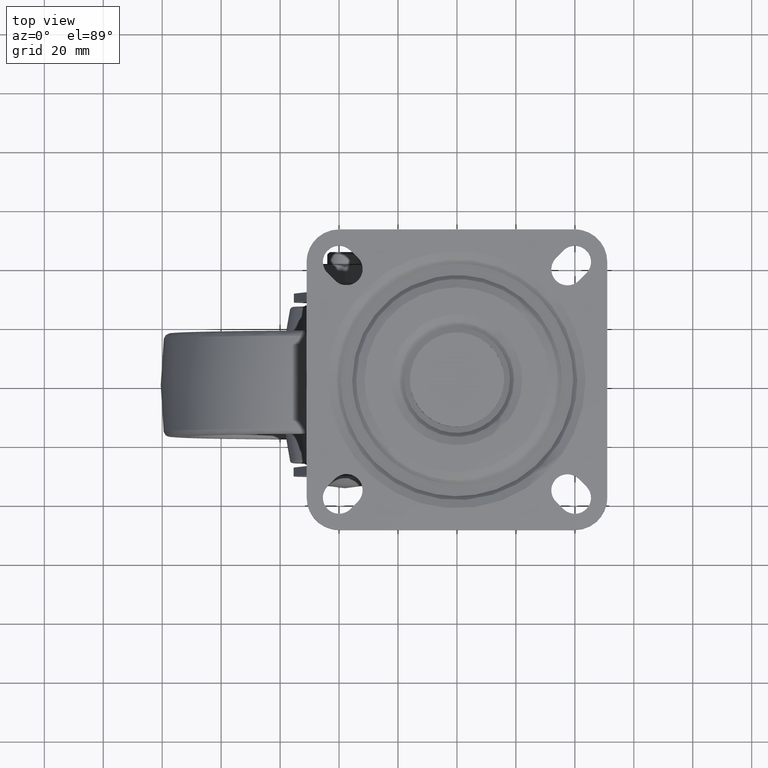
[diagram: clean part render]
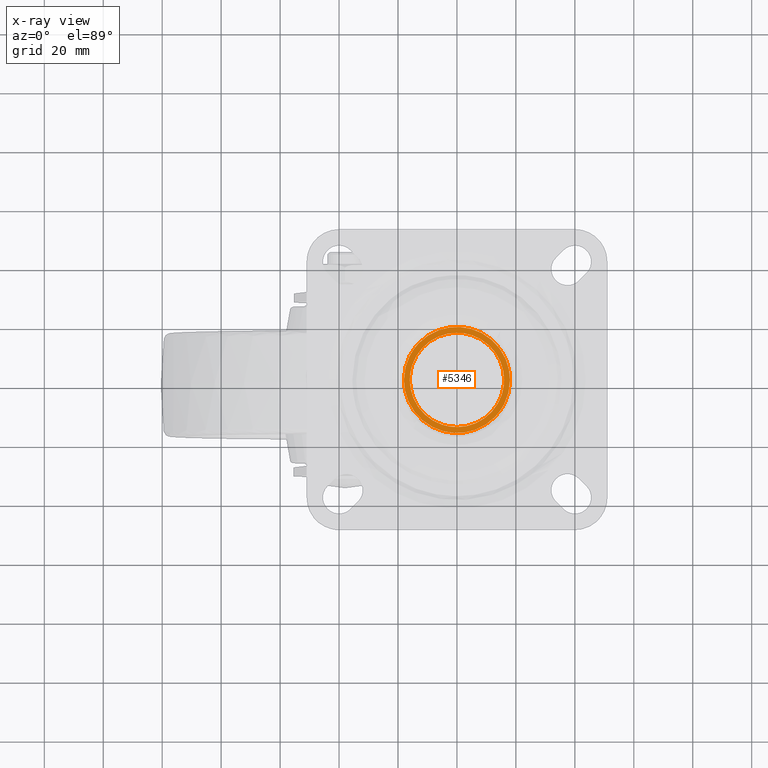
[diagram: x-ray — body ghosted, one internal face saturated and labeled with its STEP entity id]
A machine part, top view, then the same camera in x-ray: the body is ghosted and one INTERNAL B-rep face — a face not visible from any outside direction — is saturated and labeled: STEP entity #5346.
In plain terms, the highlighted face is a freeform B-spline surface patch.
Its self-contained STEP definition (entity closure, byte-faithful):
#4897=CARTESIAN_POINT('',(0.139624568216467,-15.999390769024620,-6.500000000000000));
#4898=VERTEX_POINT('',#4897);
#4899=CARTESIAN_POINT('',(16.0,0.0,-6.500000000000000));
#4900=VERTEX_POINT('',#4899);
#4901=CARTESIAN_POINT('',(0.139624568216468,-15.999390769024629,-6.500000000000000));
#4902=CARTESIAN_POINT('',(16.0,-15.860979369279255,-6.500000000000001));
#4903=CARTESIAN_POINT('',(16.0,0.0,-6.500000000000000));
#4911=(BOUNDED_CURVE()B_SPLINE_CURVE(2,(#4901,#4902,#4903),.UNSPECIFIED.,.F.,.U.)B_SPLINE_CURVE_WITH_KNOTS((3,3),(0.251539894337657,0.500000000000000),.UNSPECIFIED.)CURVE()GEOMETRIC_REPRESENTATION_ITEM()RATIONAL_B_SPLINE_CURVE((0.996414028094228,0.708910879623303,1.0))REPRESENTATION_ITEM(''));
#4912=EDGE_CURVE('',#4898,#4900,#4911,.T.);
#4921=CARTESIAN_POINT('',(-0.139624568216461,15.999390769024620,-6.500000000000000));
#4922=VERTEX_POINT('',#4921);
#4928=CARTESIAN_POINT('',(16.0,0.0,-6.500000000000000));
#4929=CARTESIAN_POINT('',(15.999999999999998,15.999999999999998,-6.500000000000001));
#4930=CARTESIAN_POINT('',(0.0,16.0,-6.500000000000000));
#4931=CARTESIAN_POINT('',(-0.069813613252472,15.999999999999996,-6.500000000000000));
#4932=CARTESIAN_POINT('',(-0.139624568216463,15.999390769024625,-6.499999999999999));
#4940=(BOUNDED_CURVE()B_SPLINE_CURVE(2,(#4928,#4929,#4930,#4931,#4932),.UNSPECIFIED.,.F.,.U.)B_SPLINE_CURVE_WITH_KNOTS((3,2,3),(0.500000000000000,0.750000000000000,0.751539894337657),.UNSPECIFIED.)CURVE()GEOMETRIC_REPRESENTATION_ITEM()RATIONAL_B_SPLINE_CURVE((1.0,0.707106781186548,1.0,0.998195901563245,0.996414028094228))REPRESENTATION_ITEM(''));
#4941=EDGE_CURVE('',#4900,#4922,#4940,.T.);
#4964=CARTESIAN_POINT('',(-16.0,0.0,-6.500000000000000));
#4965=VERTEX_POINT('',#4964);
#4966=CARTESIAN_POINT('',(-16.0,0.0,-6.500000000000000));
#4967=CARTESIAN_POINT('',(-15.999999999999998,-15.999999999999998,-6.500000000000001));
#4968=CARTESIAN_POINT('',(0.0,-16.0,-6.500000000000000));
#4969=CARTESIAN_POINT('',(0.069813613252475,-15.999999999999998,-6.500000000000000));
#4970=CARTESIAN_POINT('',(0.139624568216468,-15.999390769024629,-6.500000000000000));
#4978=(BOUNDED_CURVE()B_SPLINE_CURVE(2,(#4966,#4967,#4968,#4969,#4970),.UNSPECIFIED.,.F.,.U.)B_SPLINE_CURVE_WITH_KNOTS((3,2,3),(0.0,0.250000000000000,0.251539894337657),.UNSPECIFIED.)CURVE()GEOMETRIC_REPRESENTATION_ITEM()RATIONAL_B_SPLINE_CURVE((1.0,0.707106781186548,1.0,0.998195901563244,0.996414028094228))REPRESENTATION_ITEM(''));
#4979=EDGE_CURVE('',#4965,#4898,#4978,.T.);
#4981=CARTESIAN_POINT('',(-0.139624568216463,15.999390769024625,-6.499999999999999));
#4982=CARTESIAN_POINT('',(-16.000000000000004,15.860979369279256,-6.500000000000000));
#4983=CARTESIAN_POINT('',(-16.0,0.0,-6.500000000000000));
#4991=(BOUNDED_CURVE()B_SPLINE_CURVE(2,(#4981,#4982,#4983),.UNSPECIFIED.,.F.,.U.)B_SPLINE_CURVE_WITH_KNOTS((3,3),(0.751539894337657,1.0),.UNSPECIFIED.)CURVE()GEOMETRIC_REPRESENTATION_ITEM()RATIONAL_B_SPLINE_CURVE((0.996414028094228,0.708910879623303,1.0))REPRESENTATION_ITEM(''));
#4992=EDGE_CURVE('',#4922,#4965,#4991,.T.);
#5269=CARTESIAN_POINT('',(19.798199930225010,-19.796637300017359,-6.500000000000000));
#5270=CARTESIAN_POINT('',(-19.798200895820258,-19.796637300017359,-6.500000000000000));
#5271=CARTESIAN_POINT('',(19.798199930225010,19.796636334774451,-6.500000000000000));
#5272=CARTESIAN_POINT('',(-19.798200895820258,19.796636334774451,-6.500000000000000));
#5273=B_SPLINE_SURFACE_WITH_KNOTS('',1,1,((#5269,#5271),(#5270,#5272)),.UNSPECIFIED.,.F.,.F.,.U.,(2,2),(2,2),(0.0,39.596400826045269),(0.0,39.593273634791807),.UNSPECIFIED.);
#5274=CARTESIAN_POINT('',(-18.0,0.0,-6.500000000000001));
#5275=VERTEX_POINT('',#5274);
#5276=CARTESIAN_POINT('',(-12.965562452832840,12.485759509369871,-6.500000000000000));
#5277=VERTEX_POINT('',#5276);
#5278=CARTESIAN_POINT('',(-18.0,0.0,-6.500000000000001));
#5279=CARTESIAN_POINT('',(-18.000000002442338,7.257858517332014,-6.500000000000001));
#5280=CARTESIAN_POINT('',(-12.965562452832829,12.485759509369867,-6.500000000000000));
#5288=(BOUNDED_CURVE()B_SPLINE_CURVE(2,(#5278,#5279,#5280),.UNSPECIFIED.,.F.,.U.)B_SPLINE_CURVE_WITH_KNOTS((3,3),(0.0,0.122155737437770),.UNSPECIFIED.)CURVE()GEOMETRIC_REPRESENTATION_ITEM()RATIONAL_B_SPLINE_CURVE((1.0,0.856885651461283,0.853629213191949))REPRESENTATION_ITEM(''));
#5289=EDGE_CURVE('',#5275,#5277,#5288,.T.);
#5290=ORIENTED_EDGE('',*,*,#5289,.T.);
#5291=CARTESIAN_POINT('',(18.0,0.0,-6.500000000000000));
#5292=VERTEX_POINT('',#5291);
#5293=CARTESIAN_POINT('',(-12.965562452832829,12.485759509369867,-6.500000000000000));
#5294=CARTESIAN_POINT('',(-7.655381659869482,18.000000004300581,-6.500000000000000));
#5295=CARTESIAN_POINT('',(-3.427119E-009,18.000000003300290,-6.500000000000000));
#5296=CARTESIAN_POINT('',(17.999999999015223,18.000000000948351,-6.500000000000000));
#5297=CARTESIAN_POINT('',(18.0,0.0,-6.500000000000000));
#5305=(BOUNDED_CURVE()B_SPLINE_CURVE(2,(#5293,#5294,#5295,#5296,#5297),.UNSPECIFIED.,.F.,.U.)B_SPLINE_CURVE_WITH_KNOTS((3,2,3),(0.122155737437770,0.250000000000000,0.500000000000000),.UNSPECIFIED.)CURVE()GEOMETRIC_REPRESENTATION_ITEM()RATIONAL_B_SPLINE_CURVE((0.853629213191949,0.850221129725265,1.0,0.707106781186547,1.0))REPRESENTATION_ITEM(''));
#5306=EDGE_CURVE('',#5277,#5292,#5305,.T.);
#5307=ORIENTED_EDGE('',*,*,#5306,.T.);
#5308=CARTESIAN_POINT('',(12.965562452832840,-12.485759509369871,-6.500000000000000));
#5309=VERTEX_POINT('',#5308);
#5310=CARTESIAN_POINT('',(18.0,0.0,-6.500000000000000));
#5311=CARTESIAN_POINT('',(18.000000002442334,-7.257858517332013,-6.500000000000000));
#5312=CARTESIAN_POINT('',(12.965562452832829,-12.485759509369867,-6.500000000000000));
#5320=(BOUNDED_CURVE()B_SPLINE_CURVE(2,(#5310,#5311,#5312),.UNSPECIFIED.,.F.,.U.)B_SPLINE_CURVE_WITH_KNOTS((3,3),(0.500000000000000,0.622155737437770),.UNSPECIFIED.)CURVE()GEOMETRIC_REPRESENTATION_ITEM()RATIONAL_B_SPLINE_CURVE((1.0,0.856885651461283,0.853629213191949))REPRESENTATION_ITEM(''));
#5321=EDGE_CURVE('',#5292,#5309,#5320,.T.);
#5322=ORIENTED_EDGE('',*,*,#5321,.T.);
#5323=CARTESIAN_POINT('',(12.965562452832829,-12.485759509369867,-6.500000000000000));
#5324=CARTESIAN_POINT('',(7.655381659869482,-18.000000004300581,-6.500000000000000));
#5325=CARTESIAN_POINT('',(3.427119E-009,-18.000000003300300,-6.500000000000000));
#5326=CARTESIAN_POINT('',(-17.999999999015223,-18.000000000948351,-6.500000000000002));
#5327=CARTESIAN_POINT('',(-18.0,0.0,-6.500000000000001));
#5335=(BOUNDED_CURVE()B_SPLINE_CURVE(2,(#5323,#5324,#5325,#5326,#5327),.UNSPECIFIED.,.F.,.U.)B_SPLINE_CURVE_WITH_KNOTS((3,2,3),(0.622155737437770,0.750000000000000,1.0),.UNSPECIFIED.)CURVE()GEOMETRIC_REPRESENTATION_ITEM()RATIONAL_B_SPLINE_CURVE((0.853629213191949,0.850221129725265,1.0,0.707106781186547,1.0))REPRESENTATION_ITEM(''));
#5336=EDGE_CURVE('',#5309,#5275,#5335,.T.);
#5337=ORIENTED_EDGE('',*,*,#5336,.T.);
#5338=EDGE_LOOP('',(#5290,#5307,#5322,#5337));
#5339=FACE_OUTER_BOUND('',#5338,.T.);
#5340=ORIENTED_EDGE('',*,*,#4941,.T.);
#5341=ORIENTED_EDGE('',*,*,#4992,.T.);
#5342=ORIENTED_EDGE('',*,*,#4979,.T.);
#5343=ORIENTED_EDGE('',*,*,#4912,.T.);
#5344=EDGE_LOOP('',(#5340,#5341,#5342,#5343));
#5345=FACE_BOUND('',#5344,.T.);
#5346=ADVANCED_FACE('',(#5339,#5345),#5273,.T.);